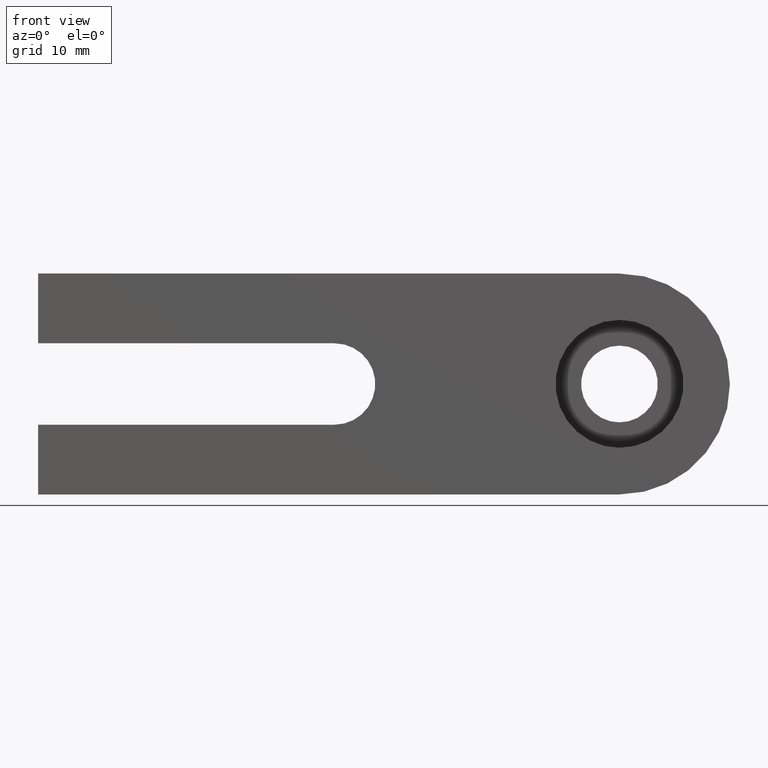
[diagram: clean part render]
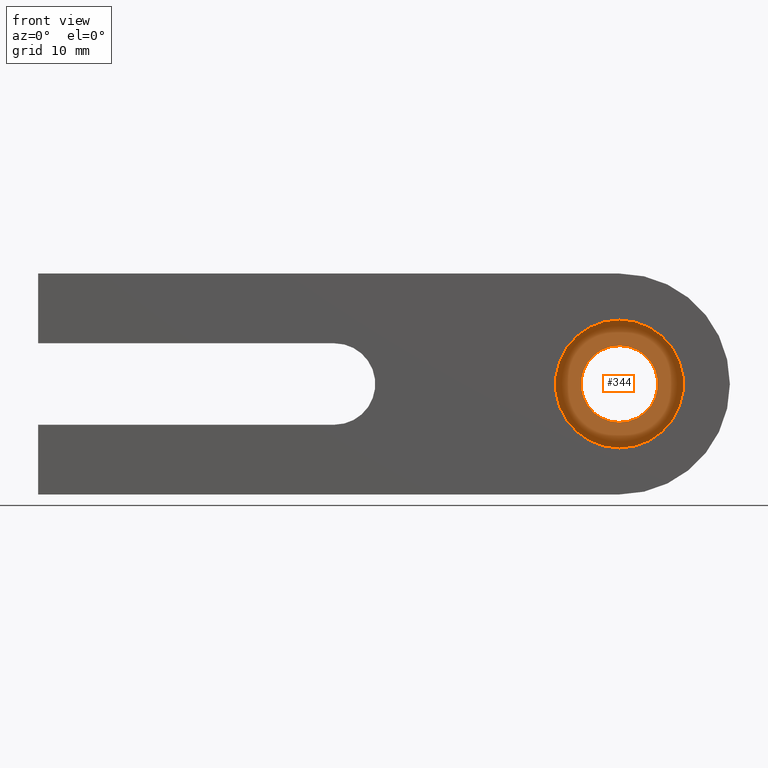
[diagram: same view with one face highlighted and labeled with its STEP entity id]
A machine part, front view. The second image highlights one B-rep face of the part: STEP entity #344.
In plain terms, the highlighted planar face has unit normal (0, 1, 0).
Its self-contained STEP definition (entity closure, byte-faithful):
#7 = FACE_OUTER_BOUND ( 'NONE', #413, .T. ) ;
#24 = FACE_BOUND ( 'NONE', #284, .T. ) ;
#29 = ORIENTED_EDGE ( 'NONE', *, *, #434, .T. ) ;
#60 = DIRECTION ( 'NONE',  ( 0.0000000000000000000, -0.0000000000000000000, 1.000000000000000000 ) ) ;
#66 = CIRCLE ( 'NONE', #634, 5.500000000000000000 ) ;
#73 = CARTESIAN_POINT ( 'NONE',  ( 6.735557395310442000E-016, 6.000000000000000000, 5.500000000000000000 ) ) ;
#90 = ORIENTED_EDGE ( 'NONE', *, *, #386, .T. ) ;
#100 = AXIS2_PLACEMENT_3D ( 'NONE', #109, #558, #60 ) ;
#102 = VERTEX_POINT ( 'NONE', #73 ) ;
#109 = CARTESIAN_POINT ( 'NONE',  ( 3.299999999999998900, 6.000000000000000000, 0.0000000000000000000 ) ) ;
#114 = CARTESIAN_POINT ( 'NONE',  ( 0.0000000000000000000, 6.000000000000000000, -5.500000000000000000 ) ) ;
#130 = AXIS2_PLACEMENT_3D ( 'NONE', #312, #155, #621 ) ;
#134 = CARTESIAN_POINT ( 'NONE',  ( 0.0000000000000000000, 6.000000000000000000, 0.0000000000000000000 ) ) ;
#136 = AXIS2_PLACEMENT_3D ( 'NONE', #134, #545, #352 ) ;
#151 = CARTESIAN_POINT ( 'NONE',  ( 0.0000000000000000000, 6.000000000000000000, 0.0000000000000000000 ) ) ;
#155 = DIRECTION ( 'NONE',  ( -0.0000000000000000000, -1.000000000000000000, -0.0000000000000000000 ) ) ;
#217 = CARTESIAN_POINT ( 'NONE',  ( 0.0000000000000000000, 6.000000000000000000, 0.0000000000000000000 ) ) ;
#263 = CIRCLE ( 'NONE', #561, 5.500000000000000000 ) ;
#276 = VERTEX_POINT ( 'NONE', #450 ) ;
#284 = EDGE_LOOP ( 'NONE', ( #390, #377 ) ) ;
#300 = CARTESIAN_POINT ( 'NONE',  ( 4.041334437186264500E-016, 6.000000000000000000, 3.299999999999998900 ) ) ;
#312 = CARTESIAN_POINT ( 'NONE',  ( 0.0000000000000000000, 6.000000000000000000, 0.0000000000000000000 ) ) ;
#318 = VERTEX_POINT ( 'NONE', #300 ) ;
#344 = ADVANCED_FACE ( 'NONE', ( #24, #7 ), #362, .F. ) ;
#352 = DIRECTION ( 'NONE',  ( 0.0000000000000000000, 0.0000000000000000000, -1.000000000000000000 ) ) ;
#362 = PLANE ( 'NONE',  #100 ) ;
#364 = DIRECTION ( 'NONE',  ( 0.0000000000000000000, 0.0000000000000000000, -1.000000000000000000 ) ) ;
#377 = ORIENTED_EDGE ( 'NONE', *, *, #590, .F. ) ;
#386 = EDGE_CURVE ( 'NONE', #102, #457, #263, .T. ) ;
#390 = ORIENTED_EDGE ( 'NONE', *, *, #514, .F. ) ;
#409 = DIRECTION ( 'NONE',  ( 0.0000000000000000000, 0.0000000000000000000, -1.000000000000000000 ) ) ;
#413 = EDGE_LOOP ( 'NONE', ( #29, #90 ) ) ;
#417 = DIRECTION ( 'NONE',  ( -0.0000000000000000000, -1.000000000000000000, -0.0000000000000000000 ) ) ;
#418 = DIRECTION ( 'NONE',  ( -0.0000000000000000000, -1.000000000000000000, -0.0000000000000000000 ) ) ;
#434 = EDGE_CURVE ( 'NONE', #457, #102, #66, .T. ) ;
#450 = CARTESIAN_POINT ( 'NONE',  ( 0.0000000000000000000, 6.000000000000000000, -3.299999999999998900 ) ) ;
#457 = VERTEX_POINT ( 'NONE', #114 ) ;
#514 = EDGE_CURVE ( 'NONE', #276, #318, #575, .T. ) ;
#515 = CIRCLE ( 'NONE', #130, 3.299999999999998900 ) ;
#545 = DIRECTION ( 'NONE',  ( -0.0000000000000000000, -1.000000000000000000, -0.0000000000000000000 ) ) ;
#558 = DIRECTION ( 'NONE',  ( 0.0000000000000000000, 1.000000000000000000, 0.0000000000000000000 ) ) ;
#561 = AXIS2_PLACEMENT_3D ( 'NONE', #151, #417, #409 ) ;
#575 = CIRCLE ( 'NONE', #136, 3.299999999999998900 ) ;
#590 = EDGE_CURVE ( 'NONE', #318, #276, #515, .T. ) ;
#621 = DIRECTION ( 'NONE',  ( 0.0000000000000000000, 0.0000000000000000000, -1.000000000000000000 ) ) ;
#634 = AXIS2_PLACEMENT_3D ( 'NONE', #217, #418, #364 ) ;